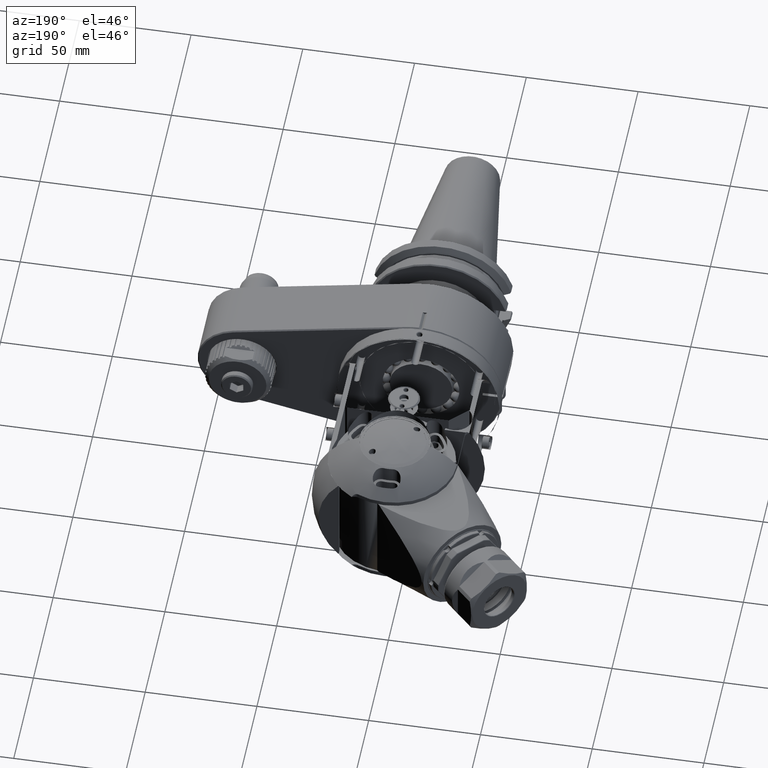
[diagram: clean part render]
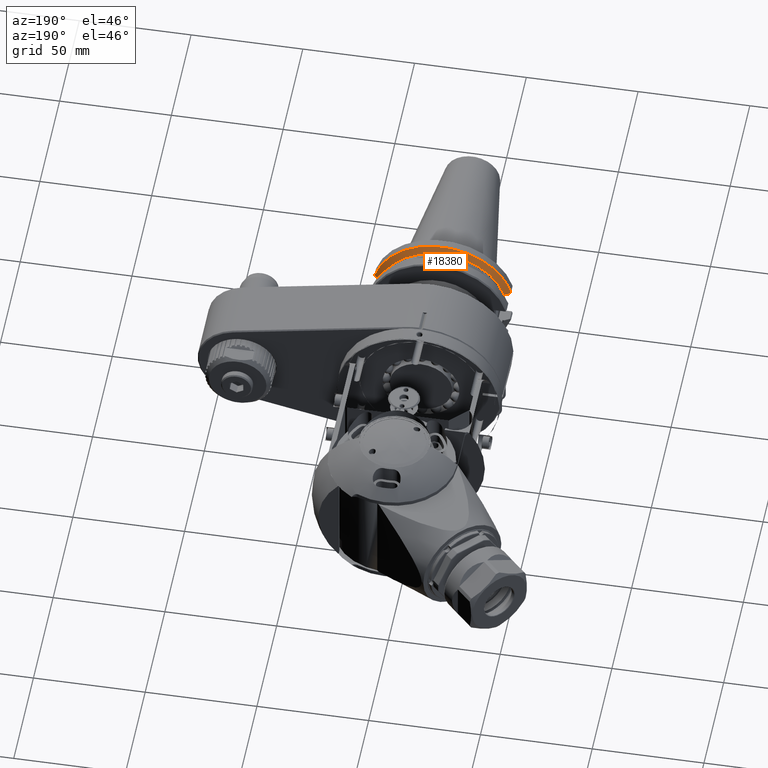
[diagram: same view with one face highlighted and labeled with its STEP entity id]
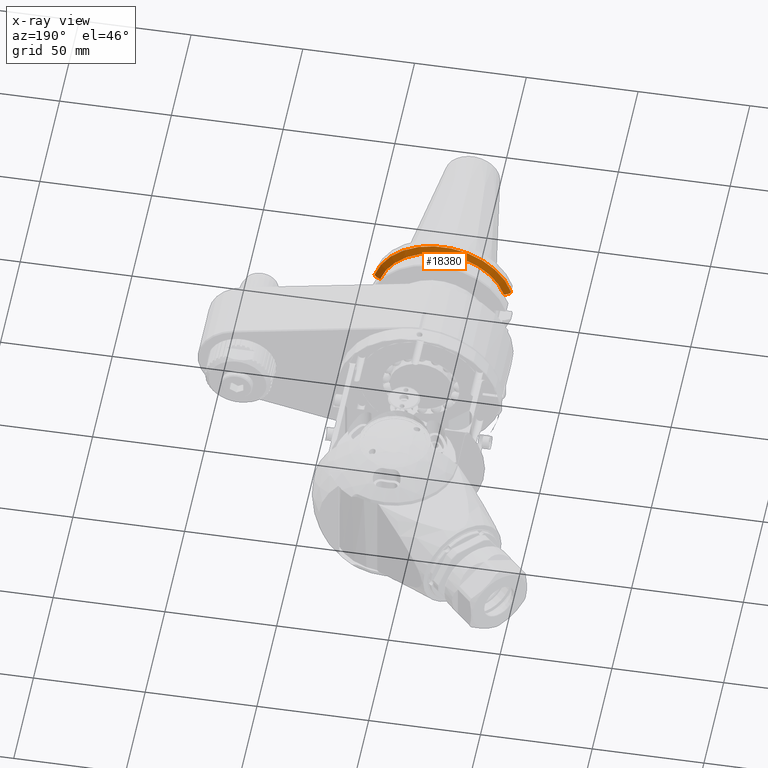
[diagram: x-ray of the same camera — body ghosted, the highlighted face saturated]
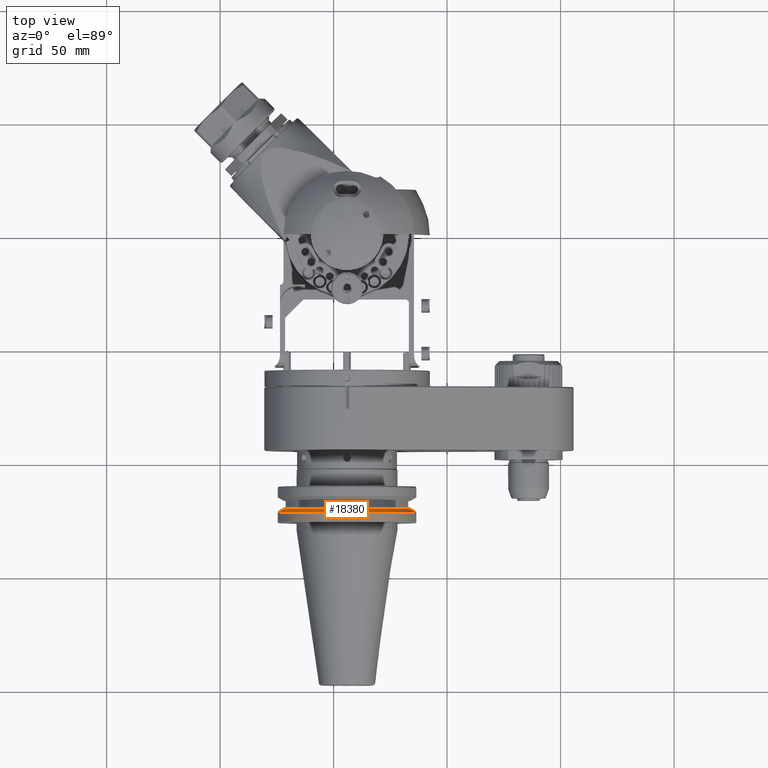
[diagram: same view with one face highlighted and labeled with its STEP entity id]
A machine part, auxiliary view. The second image highlights one B-rep face of the part: STEP entity #18380.
The next image is the same camera in x-ray: the body ghosted, the highlighted face saturated — about 0% of this face is hidden behind the body in this view.
A second angle (top view) of the same face is appended — the face is thin or edge-on in the first view.
In plain terms, the highlighted conical surface has half-angle 60 deg.
Its self-contained STEP definition (entity closure, byte-faithful):
#447=CONICAL_SURFACE('',#20566,30.32105808376,1.0471975511966);
#2052=FACE_OUTER_BOUND('',#3266,.T.);
#3266=EDGE_LOOP('',(#16750,#16751,#16752,#16753,#16754,#16755));
#4361=CIRCLE('',#20564,195.459395015628);
#4363=CIRCLE('',#20567,28.89211616751);
#4364=CIRCLE('',#20568,195.459394923287);
#4365=CIRCLE('',#20569,31.75);
#7218=B_SPLINE_CURVE_WITH_KNOTS('',3,(#37001,#37002,#37003,#37004,#37005,
#37006),.UNSPECIFIED.,.F.,.F.,(4,1,1,4),(0.,0.3333333333333,0.6666666666667,
1.),.UNSPECIFIED.);
#7219=B_SPLINE_CURVE_WITH_KNOTS('',3,(#37019,#37020,#37021,#37022,#37023,
#37024),.UNSPECIFIED.,.F.,.F.,(4,1,1,4),(0.,0.3333333333333,0.6666666666667,
1.),.UNSPECIFIED.);
#8909=VERTEX_POINT('',#36990);
#8913=VERTEX_POINT('',#36999);
#8914=VERTEX_POINT('',#37008);
#8917=VERTEX_POINT('',#37016);
#8918=VERTEX_POINT('',#37018);
#8919=VERTEX_POINT('',#37025);
#11560=EDGE_CURVE('',#8909,#8913,#7218,.T.);
#11561=EDGE_CURVE('',#8914,#8909,#4361,.T.);
#11565=EDGE_CURVE('',#8917,#8913,#4363,.T.);
#11566=EDGE_CURVE('',#8917,#8918,#7219,.T.);
#11567=EDGE_CURVE('',#8918,#8919,#4364,.T.);
#11568=EDGE_CURVE('',#8914,#8919,#4365,.T.);
#16750=ORIENTED_EDGE('',*,*,#11561,.T.);
#16751=ORIENTED_EDGE('',*,*,#11560,.T.);
#16752=ORIENTED_EDGE('',*,*,#11565,.F.);
#16753=ORIENTED_EDGE('',*,*,#11566,.T.);
#16754=ORIENTED_EDGE('',*,*,#11567,.T.);
#16755=ORIENTED_EDGE('',*,*,#11568,.F.);
#18380=ADVANCED_FACE('',(#2052),#447,.T.);
#20564=AXIS2_PLACEMENT_3D('',#37009,#25950,#25951);
#20566=AXIS2_PLACEMENT_3D('',#37015,#25956,#25957);
#20567=AXIS2_PLACEMENT_3D('',#37017,#25958,#25959);
#20568=AXIS2_PLACEMENT_3D('',#37026,#25960,#25961);
#20569=AXIS2_PLACEMENT_3D('',#37027,#25962,#25963);
#25950=DIRECTION('center_axis',(-0.797997493517508,7.53763643231405E-10,
0.602660767214671));
#25951=DIRECTION('ref_axis',(0.24973553176418,0.910100209461382,0.330680771912747));
#25956=DIRECTION('center_axis',(0.,-1.,0.));
#25957=DIRECTION('ref_axis',(-1.,0.,0.));
#25958=DIRECTION('center_axis',(0.,1.,0.));
#25959=DIRECTION('ref_axis',(-0.960400635030828,0.,0.278622720237208));
#25960=DIRECTION('center_axis',(0.797997493309632,1.50672493883699E-9,0.602660767489923));
#25961=DIRECTION('ref_axis',(-0.252196001422649,0.908230200299951,0.33393873709041));
#25962=DIRECTION('center_axis',(0.,-1.,0.));
#25963=DIRECTION('ref_axis',(0.961843563163991,0.,0.273599999999997));
#36990=CARTESIAN_POINT('',(30.05761134887,-55.05948914073,8.05));
#36999=CARTESIAN_POINT('',(27.74800671466,-53.775,8.05));
#37001=CARTESIAN_POINT('Ctrl Pts',(30.05761134887,-55.05948914073,8.05));
#37002=CARTESIAN_POINT('Ctrl Pts',(29.78292343409,-54.90629687705,8.05));
#37003=CARTESIAN_POINT('Ctrl Pts',(29.24559636644,-54.60691342392,8.05));
#37004=CARTESIAN_POINT('Ctrl Pts',(28.47679990545,-54.1793730912,8.05));
#37005=CARTESIAN_POINT('Ctrl Pts',(27.98702798292,-53.90753432106,8.05));
#37006=CARTESIAN_POINT('Ctrl Pts',(27.74800671466,-53.775,8.05));
#37008=CARTESIAN_POINT('',(30.53853313046,-55.425,8.6868));
#37009=CARTESIAN_POINT('Origin',(-18.7555446036629,-232.947125485648,-56.5846636213666));
#37015=CARTESIAN_POINT('Origin',(1.99295561091E-14,-54.6,0.));
#37016=CARTESIAN_POINT('',(-27.74800671466,-53.775,8.05));
#37017=CARTESIAN_POINT('Origin',(1.987903942864E-14,-53.775,0.));
#37018=CARTESIAN_POINT('',(-30.05761134887,-55.05948914073,8.05));
#37019=CARTESIAN_POINT('Ctrl Pts',(-27.74800671466,-53.775,8.05));
#37020=CARTESIAN_POINT('Ctrl Pts',(-27.98675193768,-53.9073812574,8.05));
#37021=CARTESIAN_POINT('Ctrl Pts',(-28.47615588002,-54.17901537944,8.05));
#37022=CARTESIAN_POINT('Ctrl Pts',(-29.24493754532,-54.60654658774,8.05));
#37023=CARTESIAN_POINT('Ctrl Pts',(-29.78264111287,-54.90613942773,8.05));
#37024=CARTESIAN_POINT('Ctrl Pts',(-30.05761134887,-55.05948914073,8.05));
#37025=CARTESIAN_POINT('',(-30.53853313046,-55.425,8.6868));
#37026=CARTESIAN_POINT('Origin',(18.7555447096834,-232.947125401684,-56.5846634931381));
#37027=CARTESIAN_POINT('Origin',(1.998007278957E-14,-55.425,0.));